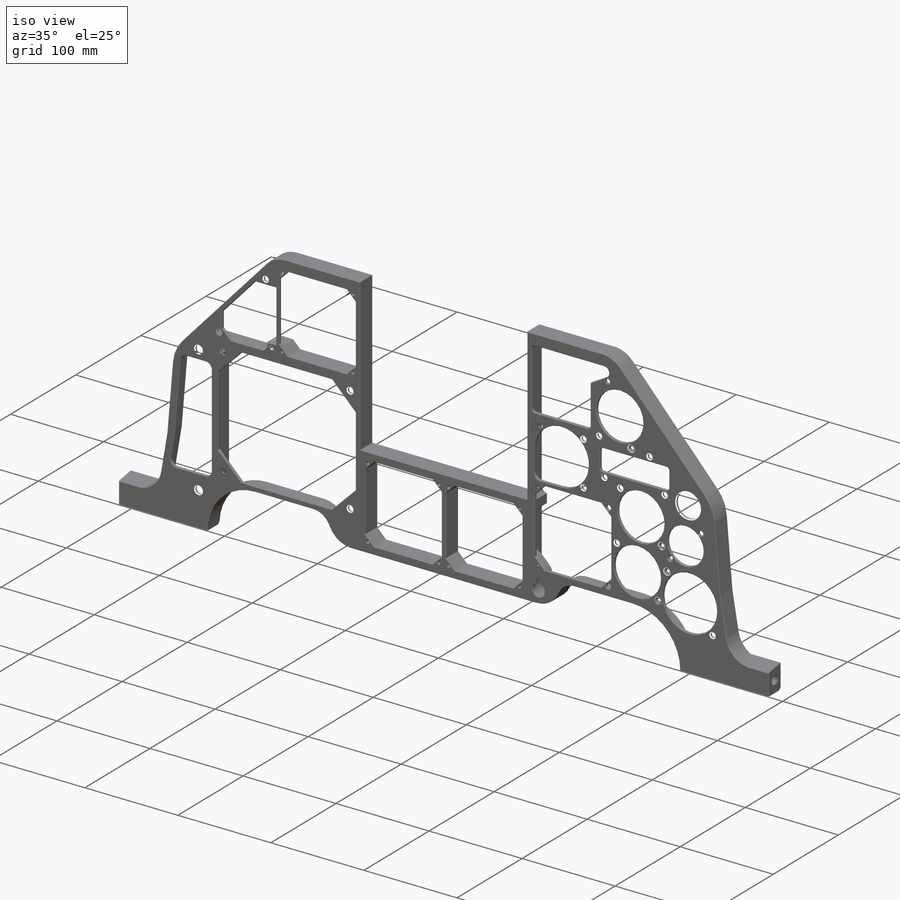
[diagram: iso view]
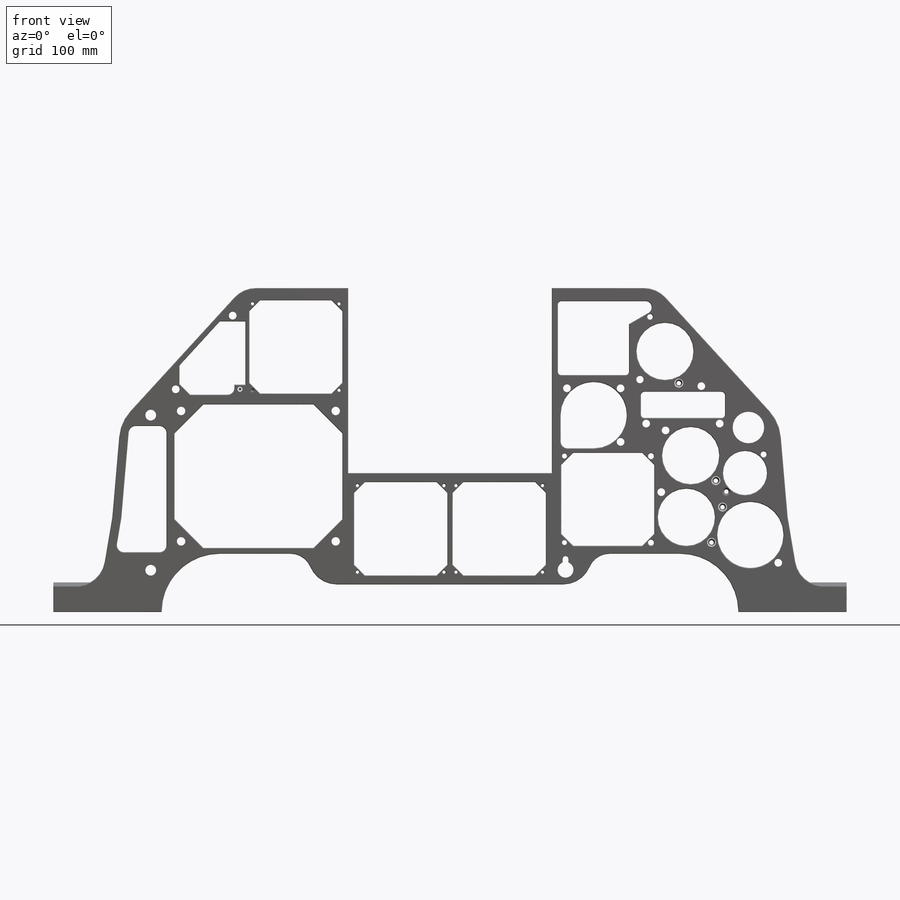
[diagram: front view]
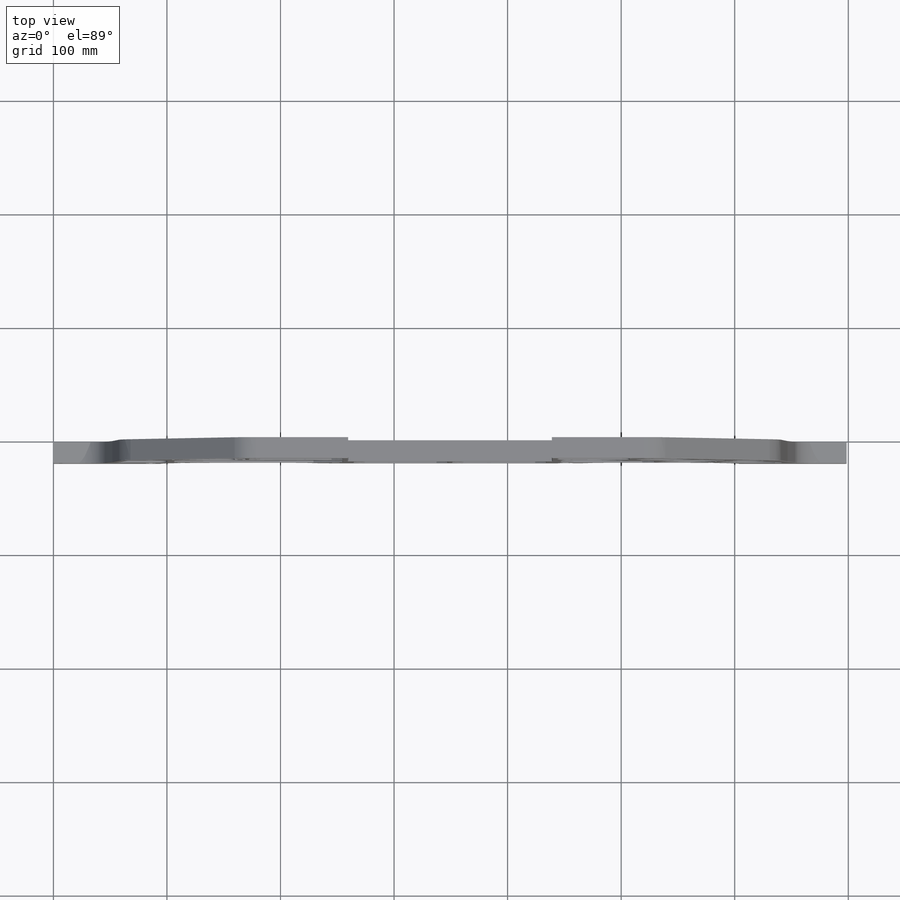
[diagram: top view]
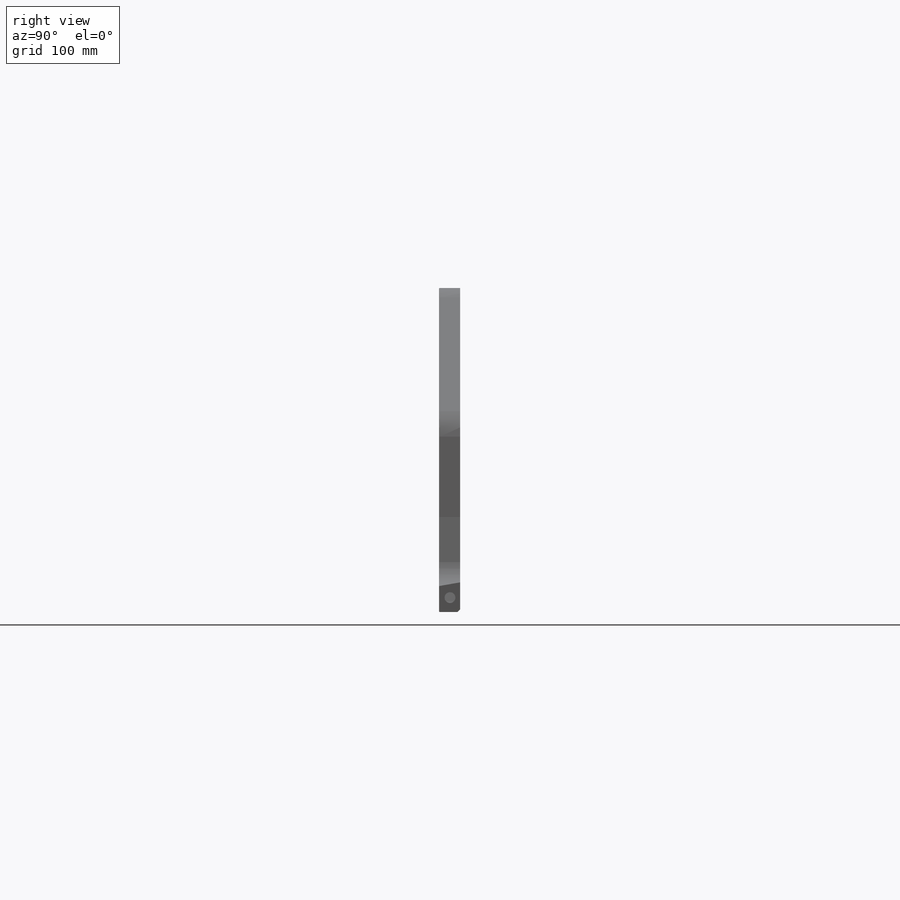
[diagram: right view]
SOLIDWORKS PART (.sldprt)
format: sldprt  version: not decoded by parser v0  size: 2,479,616 bytes
history: native  units: mm
features: sketch x51, cut_extrude x20, fillet x13, hole x12, extrude x5, chamfer x5, material x1 (+16 scaffold rows collapsed)
feature tree (123):
  scaffold x16  (default folders/planes/origin — collapsed)
  material  "Material <not specified>"
  sketch  "Sketch1"  dims[c1.D17=335.915mm c1.D18=319.9638mm c1.D23=165.8874mm c1.D24=165.8874mm c2.D23=25.4mm c2.D24=38.1mm c2.D30=6.35mm c2.D31=6.35mm c2.D33=6.35mm c2.D35=76.2mm c2.D37=8.001mm c2.D36=6.35mm c3.D31=38.1mm c3.D28=6.35mm c3.D47=25.4mm c3.D50=6.35mm c3.D49=3.175mm c3.D52=19.05mm c3.D53=19.05mm c3.D54=19.05mm c3.D1=259.5118mm c3.D2=285.369mm c3.D5=~74.076137mm c4.D5=8.5deg c5.D5=~117.377746mm c6.D5=8.5deg c6.D1=3.175mm c6.D4=~92.444024mm c7.D4=8.5deg c7.D5=259.5118mm c7.D11=143.9164mm c7.D15=81.9404mm c7.D17=~143.81675mm c8.D17=~146.555915deg c9.D17=259.5118mm c10.D17=222.05deg c10.D18=285.369mm c10.D19=285.369mm c11.D19=5.05deg c11.D20=92.3798mm c11.D18=159.9819mm c12.D19=159.9819mm c13.D19=52.5deg c13.D20=~232.734196mm c14.D19=44.7548mm c14.D20=167.9575mm c14.D21=~40.056413mm c15.D20=256.3368mm c15.D32=111.125mm c15.D34=1.3716mm c15.D36=38.1mm c15.D37=~5.009499mm c16.D36=6.9723mm c16.D34=12.7mm c16.D38=35.8775mm c16.D39=~36.352434mm c17.D39=90.0deg c18.D39=13.97mm c18.D34=12.7mm c18.D36=~6.008644mm c18.D41=11.3284mm c18.D43=1.3716mm c18.D44=1.3716mm c18.D31=~27.530257mm c18.D35=~26.769295mm c18.D45=4.699mm c18.D47=~22.627975mm c18.D53=~11.018948mm c18.D55=25.4mm c19.D31=143.9164mm c19.D6=103.3272mm c20.D31=~9.542726mm c20.D3=25.4mm c20.D4=4.8768mm c20.D6=2.921mm c21.D4=3.175mm c21.D6=103.3145mm c22.D4=6.096mm c22.D7=4.8768mm c22.D8=18.9103mm c22.D9=162.8267mm c22.D10=146.812mm c22.D11=4.2545mm c22.D12=5.0292mm c22.D13=10.9474mm c22.D14=81.9404mm c22.D16=92.3798mm c22.D18=44.831mm c22.D20=22.86mm c22.D21=32.3215mm c22.D22=37.7698mm c22.D25=5.3086mm c22.D26=7.9121mm c22.D27=6.9723mm c22.D28=27.305mm c22.D29=3.8354mm c22.D32=111.125mm c22.D36=1.3716mm c22.D40=2.794mm c22.D41=26.67mm c22.D42=149.7076mm c22.D35=3.4544mm c23.D41=3.175mm c23.D44=58.0517mm c23.D45=4.699mm c23.D46=64.4144mm c23.D48=8.8138mm c23.D49=9.525mm c23.D51=0.9652mm c23.D53=0.9652mm c23.D31=143.9164mm]
  sketch  "Sketch3"  dims[c1.D3=102.5906mm c1.D2=95.2754mm c1.D1=234.0737mm c2.D3=~89.75725mm c2.D4=162.941mm c2.D5=98.1583mm c2.D6=12.7mm]
  extrude  "Extrude1"  Depth=19.3802mm
  sketch  "Sketch4"  dims[D2=126.2888mm D1=102.5906mm]
  fillet  "Fillet3"  Radius=19.05mm
  fillet  "Fillet4"  Radius=25.4mm
  cut_extrude  "Extrude2"  [1 undecoded]
  sketch  "Sketch5"  dims[c1.D1=2.3495mm c1.D2=82.1309mm c1.D3=~41.06545mm c1.D4=~41.06545mm c2.D1=82.1309mm]
  cut_extrude  "Extrude3"  [1 undecoded]
  chamfer  "Chamfer1"  Distance=9.525mm Angle=45deg
  chamfer  "Chamfer2"  Distance=9.525mm Angle=45deg
  chamfer  "Chamfer3"  Distance=25.4mm Angle=45deg
  sketch  "Sketch6"  dims[c1.D9=~6.18116mm c1.D7=~12.424112mm c2.D7=123.3deg c3.D7=162.941mm c4.D7=123.3deg c5.D7=~50.717888mm c6.D7=30.0deg c6.D8=62.6999mm c6.D9=~6.303581mm c6.D1=5.207mm c6.D2=62.6999mm c6.D3=11.6459mm c6.D4=64.9732mm c6.D5=82.6516mm c6.D6=44.9199mm c7.D2=31.75mm]
  cut_extrude  "Extrude4"  [1 undecoded]
  sketch  "Sketch7"  dims[D1=50.2031mm D2=6.5659mm D3=7.2517mm]
  cut_extrude  "Extrude5"  [1 undecoded]
  sketch  "Sketch8"  dims[D1=58.4454mm D2=82.7278mm D3=7.62mm]
  cut_extrude  "Extrude6"  [1 undecoded]
  sketch  "Sketch9"  dims[D1=7.0231mm D2=81.8896mm D3=13.4874mm D4=81.8896mm]
  cut_extrude  "Extrude7"  [1 undecoded]
  sketch  "Sketch10"  dims[D1=50.292mm D2=50.292mm D3=3.175mm D4=97.0788mm D5=61.3664mm]
  cut_extrude  "Extrude8"  [1 undecoded]
  sketch  "Sketch11"  dims[D1=22.9997mm D2=74.0791mm D3=78.3463mm D4=91.44mm]
  cut_extrude  "Extrude9"  [1 undecoded]
  sketch  "Sketch12"  dims[D1=58.3565mm D2=~5.78231mm D3=4.1529mm]
  cut_extrude  "Extrude10"  [1 undecoded]
  sketch  "Sketch13"  dims[D1=38.7477mm D2=26.162mm D3=14.6812mm D4=7.6708mm D5=6.2484mm D6=159.9438mm]
  cut_extrude  "Extrude11"  [1 undecoded]
  sketch  "Sketch14"  dims[D1=12.2555mm D2=1.7399mm D3=1.7399mm D4=17.3101mm D5=6.6294mm D6=11.1379mm]
  cut_extrude  "Extrude12"  [1 undecoded]
  sketch  "Sketch16"  dims[D1=2.667mm D2=2.667mm D3=41.5036mm D4=4.826mm]
  cut_extrude  "Extrude13"  Depth=16.6878mm
  sketch  "Sketch17"  dims[D1=2.667mm D2=2.0701mm D3=2.0701mm]
  cut_extrude  "Extrude14"  Depth=16.6878mm
  sketch  "Sketch18"  dims[c1.D6=12.7mm c1.D7=19.05mm c1.D9=12.7mm c1.D10=~4.932773mm c2.D10=60.0deg c2.D1=2.667mm c2.D2=3.175mm c2.D3=3.2385mm c2.D4=154.0129mm c2.D5=2.667mm c2.D8=2.667mm]
  cut_extrude  "Extrude15"  Depth=16.6878mm
  sketch  "Sketch19"  dims[D1=3.0988mm D2=2.667mm D3=2.667mm D4=41.4401mm D5=3.81mm D6=4.572mm D7=4.826mm]
  cut_extrude  "Extrude16"  Depth=16.6878mm
  fillet  "Fillet5"  Radius=6.35mm
  fillet  "Fillet6"  Radius=6.35mm
  fillet  "Fillet7"  Radius=6.35mm
  fillet  "Fillet8"  Radius=6.35mm
  sketch  "Sketch20"  dims[c1.D1=19.3802mm c2.D1=10.0deg]
  extrude  "Extrude17"  [1 undecoded]
  sketch  "Sketch21"  dims[c1.D1=~20.662289mm c2.D1=10.0deg]
  extrude  "Extrude18"  [1 undecoded]
  sketch  "Sketch22"  dims[D2=6.985mm D1=12.7mm]
  cut_extrude  "Extrude19"  [1 undecoded]
  sketch  "Sketch23"  dims[D2=9.525mm D1=12.7mm]
  cut_extrude  "Extrude20"  [1 undecoded]
  chamfer  "Chamfer4"  Distance=3.175mm Angle=45deg
  sketch  "Sketch24"  dims[D1=161.7472mm D2=171.3738mm]
  extrude  "Extrude21"  [1 undecoded]
  fillet  "Fillet9"  Radius=6.35mm
  chamfer  "Chamfer5"  Distance=10.668mm Angle=45deg
  sketch  "Sketch25"
  extrude  "Extrude22"  Depth=6.731mm
  fillet  "Fillet10"  Radius=6.35mm
  fillet  "Fillet11"  Radius=6.35mm
  fillet  "Fillet12"  Radius=3.175mm
  sketch  "Sketch26"  dims[c1.D27=4.826mm c1.D25=4.826mm c1.D37=62.611mm c1.D39=46.4185mm c1.D41=69.342mm c1.D6=69.6214mm c1.D38=31.3055mm c2.D38=45.0deg c2.D40=~23.20925mm c3.D40=135.0deg c4.D40=~23.20925mm c5.D40=45.0deg c5.D1=38.1mm c5.D2=38.1mm c5.D3=4.064mm c5.D4=4.7752mm c5.D5=151.7777mm c5.D6=27.94mm c5.D7=101.6mm c5.D8=68.0847mm c5.D9=68.0847mm c5.D10=57.404mm c5.D11=57.404mm c5.D12=85.725mm c5.D13=173.3804mm c5.D14=36.83mm c5.D15=38.1mm c5.D16=38.1mm c5.D17=38.1mm c5.D18=38.1mm c5.D19=38.1mm c5.D20=38.1mm c5.D21=38.1mm c5.D22=38.1mm c5.D23=23.622mm c5.D24=23.622mm c5.D25=6.35mm c5.D26=86.36mm c5.D28=25.4mm c6.D25=77.47mm c6.D27=80.645mm c6.D29=111.76mm c6.D30=83.82mm c6.D31=32.385mm c6.D32=32.385mm c6.D33=16.51mm c6.D34=16.51mm c6.D35=131.572mm c6.D36=131.572mm]
  hole  "#6-32 Tapped Hole1"  Diameter=2.7051mm Depth=19.3802mm
  sketch  "3DSketch1"
  sketch  "Sketch27"  dims[hole-wizard template sketch: 60 standard entries collapsed; hole parameters kept: c18.Thru Tap Drill Depth=19.3802mm]
  hole  "#6-32 Tapped Hole2"  Diameter=2.7051mm Depth=10.9728mm
  sketch  "3DSketch2"
  sketch  "Sketch28"  dims[hole-wizard template sketch: 47 standard entries collapsed; hole parameters kept: c15.Tap Drill Depth=10.9728mm c15.D3=~14.816244mm c15.Drill Angle=118.0deg]
  hole  "#6-32 Tapped Hole3"  Diameter=2.7051mm Depth=10.9728mm
  sketch  "3DSketch3"
  sketch  "Sketch29"  dims[hole-wizard template sketch: 47 standard entries collapsed; hole parameters kept: c15.Tap Drill Depth=10.9728mm c15.D3=~14.816244mm c15.Drill Angle=118.0deg]
  hole  "#6 (0.204) Diameter Hole2"  Diameter=5.1816mm Depth=19.3802mm
  sketch  "3DSketch4"
  sketch  "Sketch30"  dims[hole-wizard template sketch: 59 standard entries collapsed; hole parameters kept: c18.Thru Hole Dia.=5.1816mm c18.Thru Hole Depth=19.3802mm]
  sketch  "Sketch31"  dims[D1=5.842mm]
  cut_extrude  "Extrude23"  [1 undecoded]
  sketch  "Sketch32"  dims[D1=7.874mm D2=7.874mm]
  cut_extrude  "Extrude24"  [1 undecoded]
  hole  "#6-32 Tapped Hole4"  Diameter=2.7051mm Depth=19.3802mm
  sketch  "3DSketch5"
  sketch  "Sketch33"  dims[hole-wizard template sketch: 60 standard entries collapsed; hole parameters kept: c18.Thru Tap Drill Depth=19.3802mm]
  hole  "#6 (0.204) Diameter Hole5"  Diameter=5.1816mm Depth=19.3802mm
  sketch  "3DSketch8"
  sketch  "Sketch36"  dims[hole-wizard template sketch: 59 standard entries collapsed; hole parameters kept: c18.Thru Hole Dia.=5.1816mm c18.Thru Hole Depth=19.3802mm]
  hole  "#6-32 Tapped Hole5"  Diameter=2.7051mm Depth=19.3802mm
  sketch  "3DSketch9"
  sketch  "Sketch37"  dims[hole-wizard template sketch: 60 standard entries collapsed; hole parameters kept: c18.Thru Tap Drill Depth=19.3802mm]
  hole  "#6 (0.204) Diameter Hole6"  Diameter=5.1816mm Depth=2.6924mm
  sketch  "3DSketch10"
  sketch  "Sketch38"  dims[hole-wizard template sketch: 59 standard entries collapsed; hole parameters kept: c18.Thru Hole Dia.=5.1816mm c18.Thru Hole Depth=2.6924mm]
  fillet  "Fillet16"  Radius=3.175mm
  sketch  "Sketch39"  dims[D1=4.826mm]
  cut_extrude  "Extrude25"  [1 undecoded]
  hole  "CSK for #6 Flat Head Machine Screw (100)1"  Diameter=3.7973mm Depth=19.3802mm
  sketch  "3DSketch12"
  sketch  "Sketch42"  dims[hole-wizard template sketch: 55 standard entries collapsed; hole parameters kept: c17.Thru Hole Depth=19.3802mm c17.Near C'Sink Dia.=7.0866mm c17.D4=~3.666174mm c17.Near C'Sink Angle=100.0deg]
  hole  "#6 (0.204) Diameter Hole7"  Diameter=5.1816mm Depth=2.6924mm
  sketch  "3DSketch13"
  sketch  "Sketch44"  dims[hole-wizard template sketch: 59 standard entries collapsed; hole parameters kept: c18.Thru Hole Dia.=5.1816mm c18.Thru Hole Depth=2.6924mm]
  hole  "#6 (0.204) Diameter Hole8"  Diameter=5.1816mm Depth=2.6924mm
  sketch  "3DSketch14"
  sketch  "Sketch45"  dims[hole-wizard template sketch: 59 standard entries collapsed; hole parameters kept: c18.Thru Hole Dia.=5.1816mm c18.Thru Hole Depth=2.6924mm]
  hole  "CSK for #6 Flat Head Machine Screw (100)2"  Diameter=3.7973mm Depth=19.3802mm
  sketch  "3DSketch15"
  sketch  "Sketch46"  dims[hole-wizard template sketch: 55 standard entries collapsed; hole parameters kept: c17.Thru Hole Depth=19.3802mm c17.Near C'Sink Dia.=7.0866mm c17.D4=~3.666174mm c17.Near C'Sink Angle=100.0deg]
  fillet  "Fillet13"  Radius=0.79375mm
  fillet  "Fillet14"  Radius=0.79375mm
decode coverage: 74 of 106 modeling features carry decoded parameters
note: ~ marks probable driven/reference dimensions
note: 19 parameter values undecoded
summary: no parameter record found for 19 features; Diameter pulled from absorbed wizard sketch
note: suppression state not decoded; provenance and decode notes live in map.json
